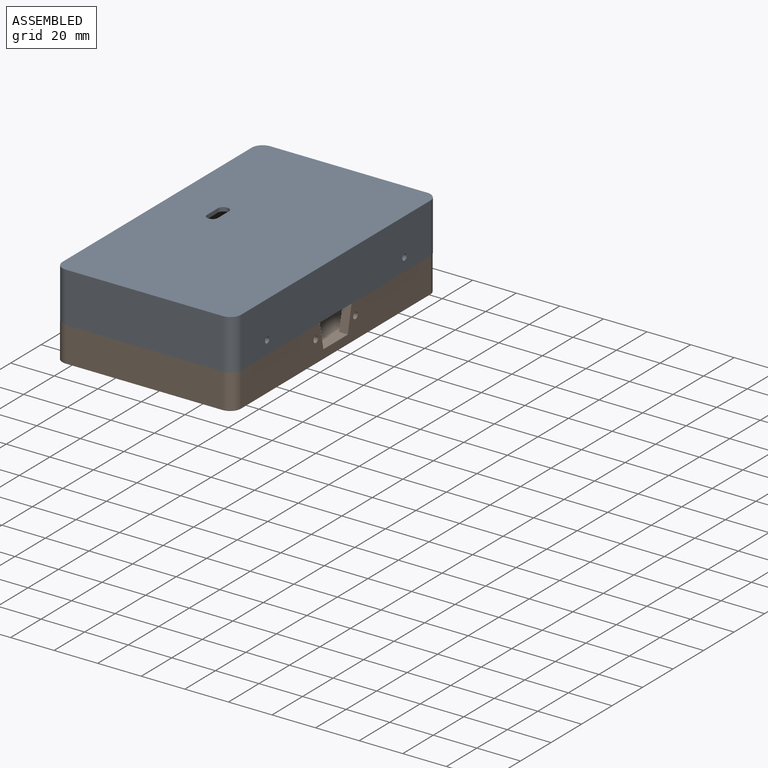
[diagram: assembled view]
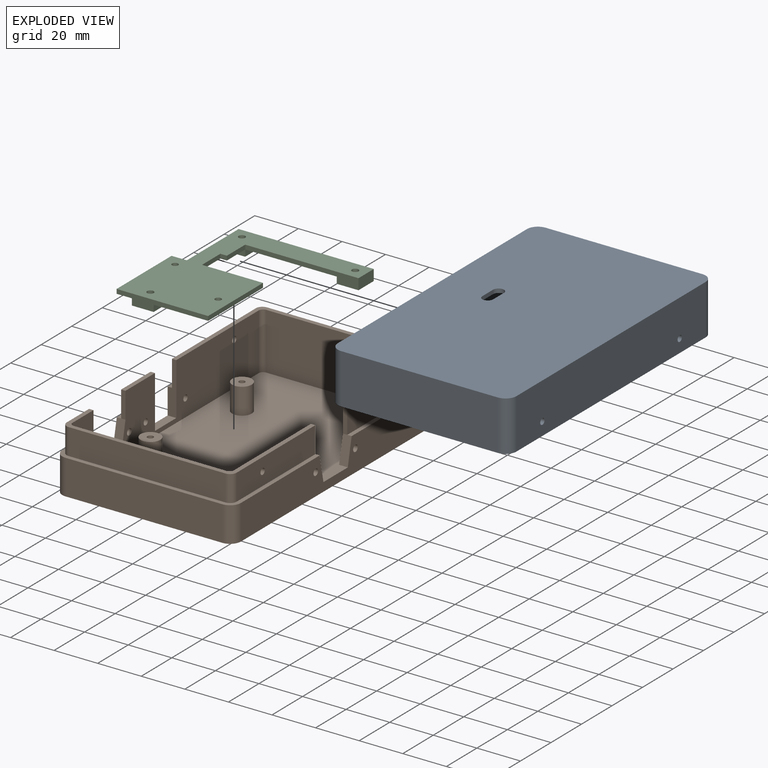
[diagram: exploded view]
GUIDED TOUR — MATED ASSEMBLY (Onshape document 04ff44c08c69bb49b1669c50, AutoMate assembly 04ff44c08c69bb49b1669c50_e179a15baec8fcd896b76df0_8e14007670037d41031667e9_default)

This assembly has 3 components, labeled P0..P2 below (a component is one placed occurrence of a part; the same part can appear more than once), held together by 2 mates. A mate is a constraint between two components; its type names the relative motion it leaves free:
  FASTENED — locks the two components together rigidly (no relative motion).
Axis/direction vectors are unit vectors and 'through' points are millimeter coordinates, both in the assembly's world frame.

MATES
  1. FASTENED "Fastened 2": P2 <-> P1, direction (0.000, 0.000, -1.000) through (92.98, 67.39, 0.68) mm
  2. FASTENED "Fastened 1": P0 <-> P1, direction (1.000, 0.000, 0.000) through (24.98, 82.39, 8.68) mm

ASSEMBLY ORDER
  1. P2 — the base component [order verified]
  2. P0 [order verified]
  3. P1 [order verified]
Order-tag legend:
  [order verified] — this step's position reverses a verified removal order: the component was checked to insert without passing through the ones already placed.

Of the 3 components, 3 carry the full construction recipe — the FeatureScript program that regenerates the part's solid from scratch; the rest are supplied as boundary geometry only.
Each toured component is shown spotlighted twice — in the assembled view, then in the exploded view, where a leader line traces a displaced component back to its assembled socket (saturated green if recipe-attached, orange if geometry-only; every other component desaturated gray) — followed by its recipe or geometry summary and the mates that hold it.
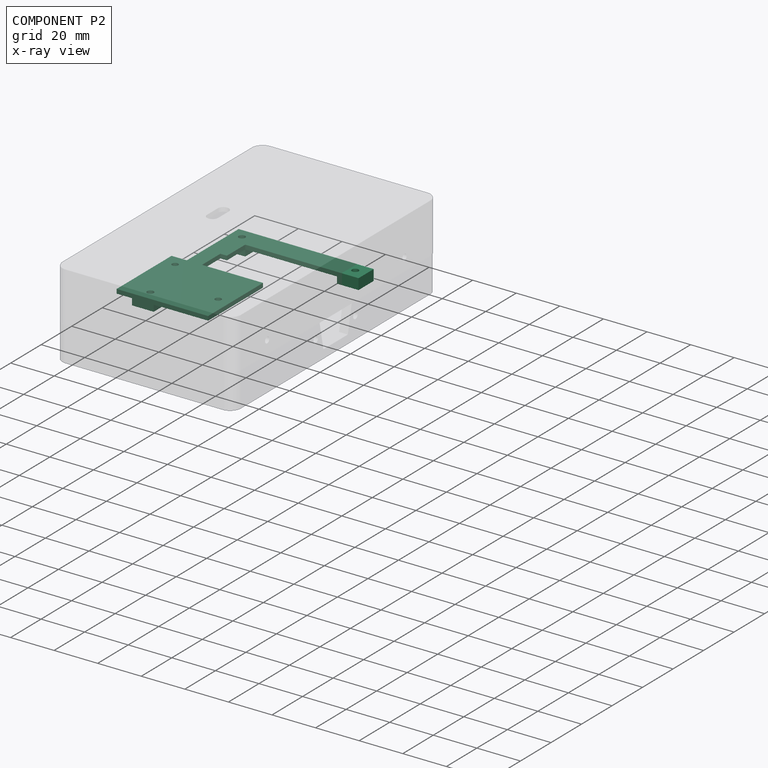
[diagram: component P2 — x-ray view]
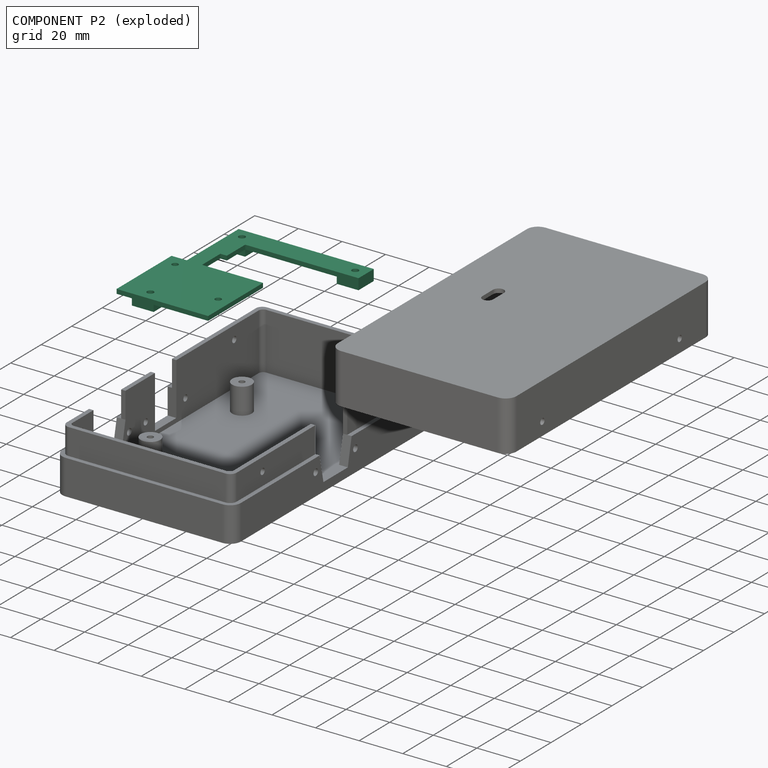
[diagram: component P2 — exploded]
COMPONENT P2 — recipe-attached (CADFS 00155675, mesh-verified: the recipe's output STEP matches this component's geometry to below the mesh-comparison resolution (tessellation chordal tolerance ~0.148 mm)).
Held by: FASTENED mate "Fastened 2" to P1.
Construction recipe (FeatureScript — the CAD program that rebuilds this solid; sketch coordinates are in the units given by the * unit suffixes, e.g. mm):

FeatureScript 1511;
import(path : "onshape/std/geometry.fs", version : "1511.0");
import(path : "onshape/std/common.fs", version : "1511.0");
const mm = millimeter;
const VERTEX = EntityType.VERTEX;
const EDGE = EntityType.EDGE;
const FACE = EntityType.FACE;
const BODY = EntityType.BODY;
function v(x, y){return vector(x, y);}
function OD(order){return orderDisambiguation(order);}
function OSD(set){return originalSetDisambiguation(set);}
function TD(topology){return topologyDisambiguation(topology);}
function TDD(query){return trueDependencyDisambiguation(query);}
function sQuery(a, b, c) {return sketchEntityQuery(a, b, c);}

annotation { "Feature Type Name" : "Feature", "Feature Type Description" : "" }
export const myFeature = defineFeature(function(context is Context, id is Id, definition is map)
    precondition{}
    {
        {
            var Q0;
            Q0=qCreatedBy(makeId("Top.planeOp"),FACE);
            var sketch = newSketch(context, id + "F0", { "sketchPlane" : qUnion([Q0])});
            skLineSegment(sketch, "E0", {"start": v(-62.44, 59.41) * mm, "end": v(-52.44, 59.41) * mm});
            skLineSegment(sketch, "E1", {"start": v(-52.44, 59.41) * mm, "end": v(-52.44, 7.41) * mm});
            skLineSegment(sketch, "E2", {"start": v(-52.44, 7.41) * mm, "end": v(-40.44, 7.41) * mm});
            skLineSegment(sketch, "E3", {"start": v(-40.44, 7.41) * mm, "end": v(-40.44, 4.41) * mm});
            skLineSegment(sketch, "E4", {"start": v(-40.44, 4.41) * mm, "end": v(-28.44, 4.41) * mm});
            skLineSegment(sketch, "E5", {"start": v(-28.44, 4.41) * mm, "end": v(-28.44, 32.41) * mm});
            skLineSegment(sketch, "E6", {"start": v(-28.44, 32.41) * mm, "end": v(7.56, 32.41) * mm});
            skLineSegment(sketch, "E7", {"start": v(7.56, 32.41) * mm, "end": v(7.56, -9.59) * mm});
            skLineSegment(sketch, "E8", {"start": v(7.56, -9.59) * mm, "end": v(-28.44, -9.59) * mm});
            skLineSegment(sketch, "E9", {"start": v(-28.44, -9.59) * mm, "end": v(-28.44, -2.59) * mm});
            skLineSegment(sketch, "E10", {"start": v(-28.44, -2.59) * mm, "end": v(-62.44, -2.59) * mm});
            skLineSegment(sketch, "E11", {"start": v(-62.44, -2.59) * mm, "end": v(-62.44, 59.41) * mm});
            skSolve(sketch);
        }
        {
            var Q0;
            Q0 = qSketchRegion(id + "F0", true);
            extrude(context, id + "F1", {"entities" : qUnion([Q0]), "depth" : 2 * mm});
        }
        {
            var Q0;
            Q0=makeQuery(id+"F1.opExtrude","CAP_FACE",FACE,{"disambiguationData":[OSD([sQuery(id+"F0.wireOp",EDGE,"E0"),sQuery(id+"F0.wireOp",EDGE,"E1"),sQuery(id+"F0.wireOp",EDGE,"E2"),sQuery(id+"F0.wireOp",EDGE,"E3"),sQuery(id+"F0.wireOp",EDGE,"E4"),sQuery(id+"F0.wireOp",EDGE,"E5"),sQuery(id+"F0.wireOp",EDGE,"E6"),sQuery(id+"F0.wireOp",EDGE,"E7"),sQuery(id+"F0.wireOp",EDGE,"E8"),sQuery(id+"F0.wireOp",EDGE,"E9"),sQuery(id+"F0.wireOp",EDGE,"E10"),sQuery(id+"F0.wireOp",EDGE,"E11")])],"isStart":true});
            var sketch = newSketch(context, id + "F2", { "sketchPlane" : qUnion([Q0])});
            skLineSegment(sketch, "E12.bottom", {"start": v(-52.44, -59.41) * mm, "end": v(-62.44, -59.41) * mm});
            skLineSegment(sketch, "E12.top", {"start": v(-52.44, -49.41) * mm, "end": v(-62.44, -49.41) * mm});
            skLineSegment(sketch, "E12.left", {"start": v(-52.44, -59.41) * mm, "end": v(-52.44, -49.41) * mm});
            skLineSegment(sketch, "E12.right", {"start": v(-62.44, -59.41) * mm, "end": v(-62.44, -49.41) * mm});
            skPoint(sketch, "E12.middle", {"position": v(-57.44, -54.41) * mm});
            skLineSegment(sketch, "E13.bottom", {"start": v(-52.44, -7.41) * mm, "end": v(-62.44, -7.41) * mm});
            skLineSegment(sketch, "E13.top", {"start": v(-52.44, 2.59) * mm, "end": v(-62.44, 2.59) * mm});
            skLineSegment(sketch, "E13.left", {"start": v(-52.44, -7.41) * mm, "end": v(-52.44, 2.59) * mm});
            skLineSegment(sketch, "E13.right", {"start": v(-62.44, -7.41) * mm, "end": v(-62.44, 2.59) * mm});
            skPoint(sketch, "E13.middle", {"position": v(-57.44, -2.41) * mm});
            skLineSegment(sketch, "E14.bottom", {"start": v(7.56, -7.41) * mm, "end": v(-2.44, -7.41) * mm});
            skLineSegment(sketch, "E14.top", {"start": v(7.56, 2.59) * mm, "end": v(-2.44, 2.59) * mm});
            skLineSegment(sketch, "E14.left", {"start": v(7.56, -7.41) * mm, "end": v(7.56, 2.59) * mm});
            skLineSegment(sketch, "E14.right", {"start": v(-2.44, -7.41) * mm, "end": v(-2.44, 2.59) * mm});
            skPoint(sketch, "E14.middle", {"position": v(2.56, -2.41) * mm});
            skSolve(sketch);
        }
        {
            var Q0;
            Q0 = qSketchRegion(id + "F2", true);
            extrude(context, id + "F3", {"entities" : qUnion([Q0]), "operationType" : NewBodyOperationType.ADD, "depth" : 3 * mm});
        }
        {
            var Q0;
            Q0=makeQuery(id+"F1.opExtrude","CAP_FACE",FACE,{"disambiguationData":[OSD([sQuery(id+"F0.wireOp",EDGE,"E0"),sQuery(id+"F0.wireOp",EDGE,"E1"),sQuery(id+"F0.wireOp",EDGE,"E2"),sQuery(id+"F0.wireOp",EDGE,"E3"),sQuery(id+"F0.wireOp",EDGE,"E4"),sQuery(id+"F0.wireOp",EDGE,"E5"),sQuery(id+"F0.wireOp",EDGE,"E6"),sQuery(id+"F0.wireOp",EDGE,"E7"),sQuery(id+"F0.wireOp",EDGE,"E8"),sQuery(id+"F0.wireOp",EDGE,"E9"),sQuery(id+"F0.wireOp",EDGE,"E10"),sQuery(id+"F0.wireOp",EDGE,"E11")])],"isStart":false});
            var sketch = newSketch(context, id + "F4", { "sketchPlane" : qUnion([Q0])});
            skCircle(sketch, "E15", {"center": v(-57.44, 54.41) * mm, "radius": 1.5 * mm});
            skCircle(sketch, "E16", {"center": v(-57.44, 2.41) * mm, "radius": 1.5 * mm});
            skCircle(sketch, "E17", {"center": v(2.56, 2.41) * mm, "radius": 1.5 * mm});
            skCircle(sketch, "E18", {"center": v(-6.94, 26.91) * mm, "radius": 1.4 * mm});
            skCircle(sketch, "E19", {"center": v(-22.94, -4.09) * mm, "radius": 1.4 * mm});
            skSolve(sketch);
        }
        {
            var Q0;
            Q0 = qSketchRegion(id + "F4", true);
            extrude(context, id + "F5", {"entities" : qUnion([Q0]), "operationType" : NewBodyOperationType.REMOVE, "oppositeDirection" : true, "depth" : 5 * mm});
        }
    });
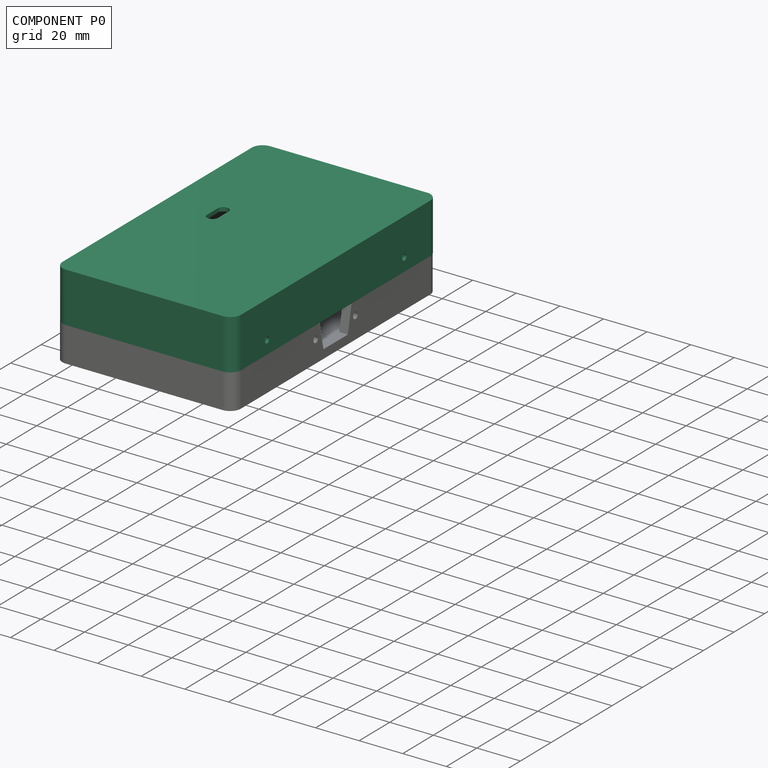
[diagram: component P0 — assembled]
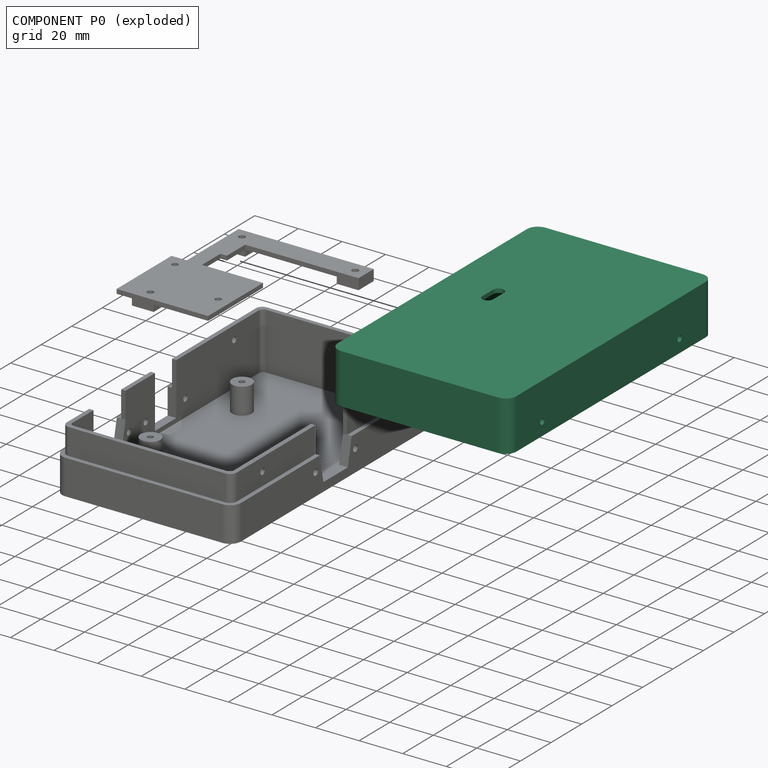
[diagram: component P0 — exploded]
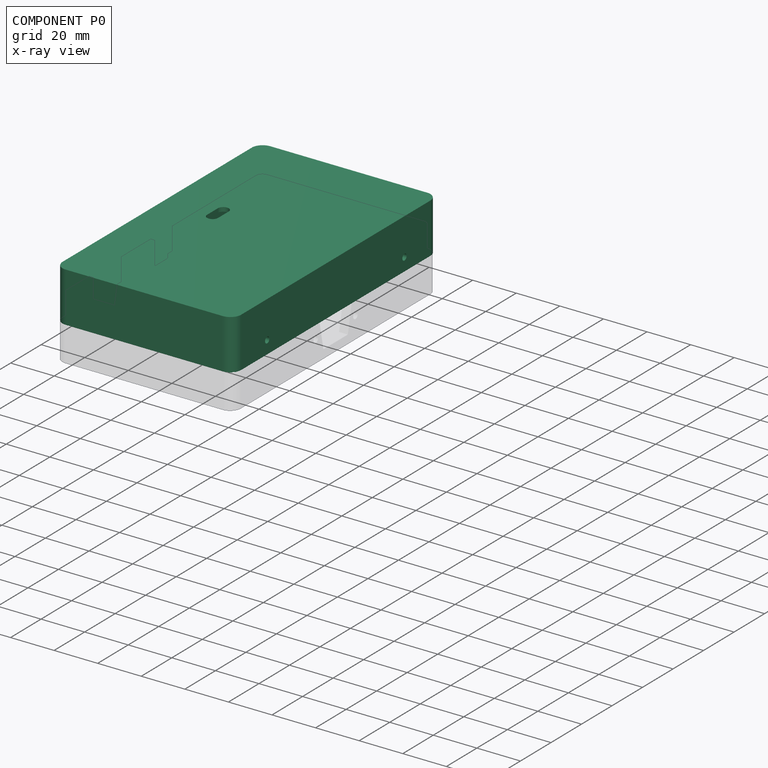
[diagram: component P0 — x-ray view]
COMPONENT P0 — recipe-attached (CADFS 00155676, mesh-verified: the recipe's output STEP matches this component's geometry to below the mesh-comparison resolution (tessellation chordal tolerance ~0.238 mm)).
Held by: FASTENED mate "Fastened 1" to P1.
Construction recipe (FeatureScript — the CAD program that rebuilds this solid; sketch coordinates are in the units given by the * unit suffixes, e.g. mm):

FeatureScript 1511;
import(path : "onshape/std/geometry.fs", version : "1511.0");
import(path : "onshape/std/common.fs", version : "1511.0");
const mm = millimeter;
const VERTEX = EntityType.VERTEX;
const EDGE = EntityType.EDGE;
const FACE = EntityType.FACE;
const BODY = EntityType.BODY;
function v(x, y){return vector(x, y);}
function OD(order){return orderDisambiguation(order);}
function OSD(set){return originalSetDisambiguation(set);}
function TD(topology){return topologyDisambiguation(topology);}
function TDD(query){return trueDependencyDisambiguation(query);}
function sQuery(a, b, c) {return sketchEntityQuery(a, b, c);}

annotation { "Feature Type Name" : "Feature", "Feature Type Description" : "" }
export const myFeature = defineFeature(function(context is Context, id is Id, definition is map)
    precondition{}
    {
        {
            var Q0;
            Q0=qCreatedBy(makeId("Top.planeOp"),FACE);
            var sketch = newSketch(context, id + "F0", { "sketchPlane" : qUnion([Q0])});
            skLineSegment(sketch, "E0.bottom", {"start": v(36, -67) * mm, "end": v(-36, -67) * mm});
            skLineSegment(sketch, "E0.top", {"start": v(36, 67) * mm, "end": v(-36, 67) * mm});
            skLineSegment(sketch, "E0.left", {"start": v(41, -62) * mm, "end": v(41, 62) * mm});
            skLineSegment(sketch, "E0.right", {"start": v(-41, -62) * mm, "end": v(-41, 62) * mm});
            skPoint(sketch, "E0.middle", {"position": v(0, 0) * mm});
            skPoint(sketch, "E1.visualSharp", {"position": v(-41, 67) * mm});
            skArc(sketch, "E1.filletArc", {"start": v(-36, 67) * mm, "mid": v(-39.54, 65.54) * mm, "end": v(-41, 62) * mm});
            skPoint(sketch, "E2.visualSharp", {"position": v(41, 67) * mm});
            skArc(sketch, "E2.filletArc", {"start": v(41, 62) * mm, "mid": v(39.54, 65.54) * mm, "end": v(36, 67) * mm});
            skPoint(sketch, "E3.visualSharp", {"position": v(41, -67) * mm});
            skArc(sketch, "E3.filletArc", {"start": v(36, -67) * mm, "mid": v(39.54, -65.54) * mm, "end": v(41, -62) * mm});
            skPoint(sketch, "E4.visualSharp", {"position": v(-41, -67) * mm});
            skArc(sketch, "E4.filletArc", {"start": v(-41, -62) * mm, "mid": v(-39.54, -65.54) * mm, "end": v(-36, -67) * mm});
            skSolve(sketch);
        }
        {
            var Q0;
            Q0=qSketchRegion(id+"F0",true);
            extrude(context, id + "F1", {"entities" : qUnion([Q0]), "depth" : 23 * mm});
        }
        {
            var Q0;
            Q0=makeQuery(id+"F1.opExtrude","CAP_FACE",FACE,{"disambiguationData":[OSD([sQuery(id+"F0.wireOp",EDGE,"E0.bottom"),sQuery(id+"F0.wireOp",EDGE,"E0.top"),sQuery(id+"F0.wireOp",EDGE,"E0.left"),sQuery(id+"F0.wireOp",EDGE,"E0.right"),sQuery(id+"F0.wireOp",EDGE,"E1.filletArc"),sQuery(id+"F0.wireOp",EDGE,"E2.filletArc"),sQuery(id+"F0.wireOp",EDGE,"E3.filletArc"),sQuery(id+"F0.wireOp",EDGE,"E4.filletArc")])],"isStart":false});
            shell(context, id + "F2", {"entities" : qUnion([Q0]), "thickness" : 1.9 * mm});
        }
        {
            var Q0;
            Q0=makeQuery(id+"F2.opShell","OFFSET_FACE",FACE,{"disambiguationData":[OSD([sQuery(id+"F0.wireOp",EDGE,"E0.bottom"),sQuery(id+"F0.wireOp",EDGE,"E0.top"),sQuery(id+"F0.wireOp",EDGE,"E0.left"),sQuery(id+"F0.wireOp",EDGE,"E0.right"),sQuery(id+"F0.wireOp",EDGE,"E1.filletArc"),sQuery(id+"F0.wireOp",EDGE,"E2.filletArc"),sQuery(id+"F0.wireOp",EDGE,"E3.filletArc"),sQuery(id+"F0.wireOp",EDGE,"E4.filletArc")])]});
            var sketch = newSketch(context, id + "F3", { "sketchPlane" : qUnion([Q0])});
            skLineSegment(sketch, "E5.left", {"start": v(20.5, 3.5) * mm, "end": v(20.5, 10.5) * mm});
            skLineSegment(sketch, "E5.right", {"start": v(15.5, 3.5) * mm, "end": v(15.5, 10.5) * mm});
            skPoint(sketch, "E5.middle", {"position": v(18, 7) * mm});
            skArc(sketch, "E6", {"start": v(15.5, 10.5) * mm, "mid": v(18, 13) * mm, "end": v(20.5, 10.5) * mm});
            skArc(sketch, "E7", {"start": v(20.5, 3.5) * mm, "mid": v(18, 1) * mm, "end": v(15.5, 3.5) * mm});
            skPoint(sketch, "E8.middle", {"position": v(0, 0) * mm});
            skSolve(sketch);
        }
        {
            var Q0;
            Q0=makeQuery(id+"F3.imprint","IMPRINT",FACE,{"disambiguationData":[TD([[makeQuery(id+"F3.imprint","IMPRINT",EDGE,{"derivedFrom":sQuery(id+"F3.wireOp",EDGE,"E5.left")}),1.0]])]});
            extrude(context, id + "F4", {"entities" : qUnion([Q0]), "operationType" : NewBodyOperationType.REMOVE, "oppositeDirection" : true, "depth" : 2 * mm});
        }
        {
            var Q0;
            Q0=makeQuery(id+"F1.opExtrude","SWEPT_FACE",FACE,{"disambiguationData":[OSD([sQuery(id+"F0.wireOp",EDGE,"E0.right")])]});
            var sketch = newSketch(context, id + "F5", { "sketchPlane" : qUnion([Q0])});
            skCircle(sketch, "E9", {"center": v(-45, 17) * mm, "radius": 1.4 * mm});
            skCircle(sketch, "E10", {"center": v(45, 17) * mm, "radius": 1.4 * mm});
            skSolve(sketch);
        }
        {
            var Q0;
            Q0 = qSketchRegion(id + "F5", true);
            extrude(context, id + "F6", {"entities" : qUnion([Q0]), "operationType" : NewBodyOperationType.REMOVE, "oppositeDirection" : true, "depth" : 2 * mm});
        }
        {
            var Q0;
            Q0=makeQuery(id+"F1.opExtrude","SWEPT_FACE",FACE,{"disambiguationData":[OSD([sQuery(id+"F0.wireOp",EDGE,"E0.left")])]});
            var sketch = newSketch(context, id + "F7", { "sketchPlane" : qUnion([Q0])});
            skCircle(sketch, "E11", {"center": v(-55, 17) * mm, "radius": 1.4 * mm});
            skCircle(sketch, "E12", {"center": v(45, 17) * mm, "radius": 1.4 * mm});
            skSolve(sketch);
        }
        {
            var Q0;
            Q0 = qSketchRegion(id + "F7", true);
            extrude(context, id + "F8", {"entities" : qUnion([Q0]), "operationType" : NewBodyOperationType.REMOVE, "oppositeDirection" : true, "depth" : 2 * mm});
        }
    });
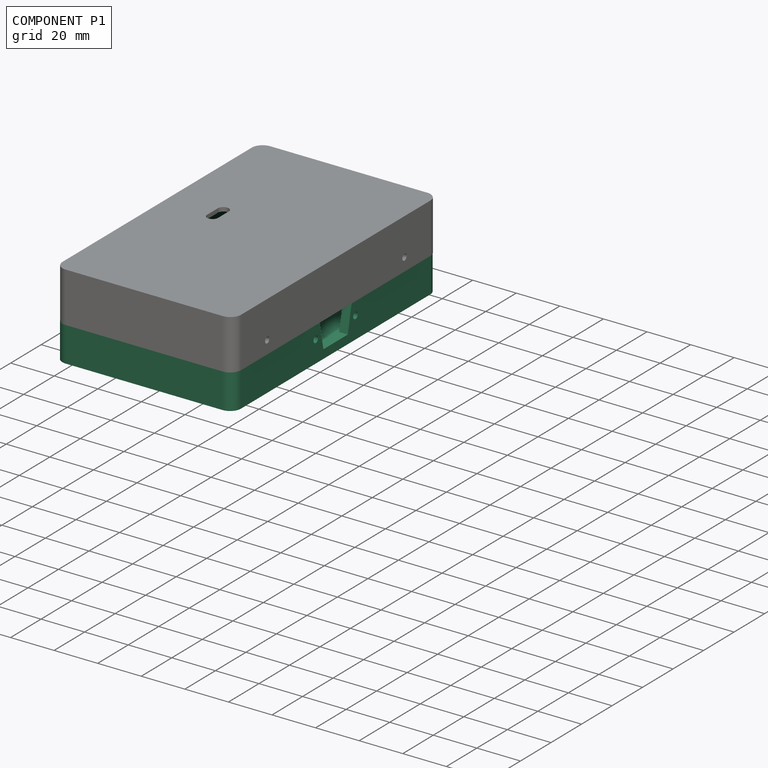
[diagram: component P1 — assembled]
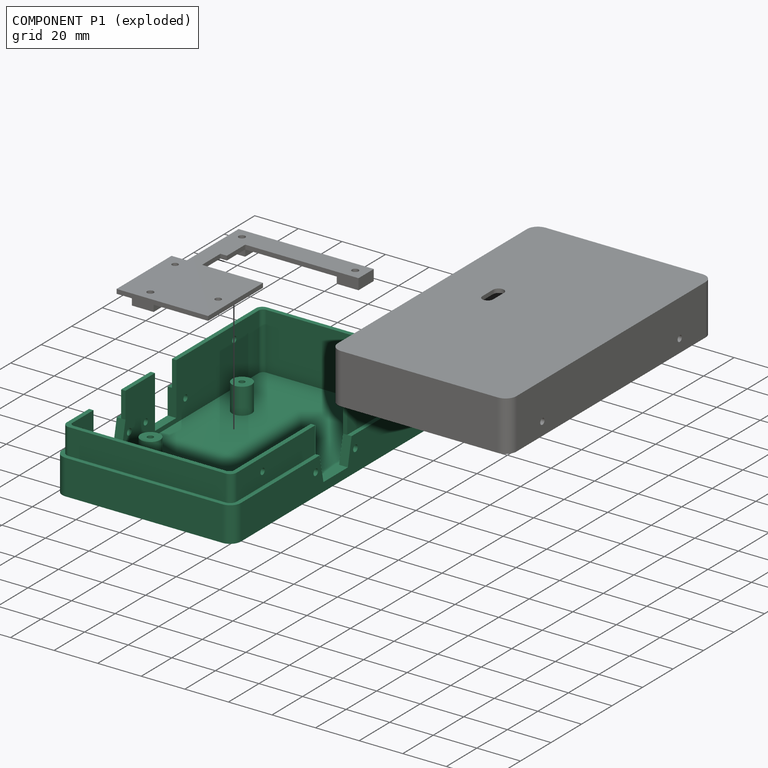
[diagram: component P1 — exploded]
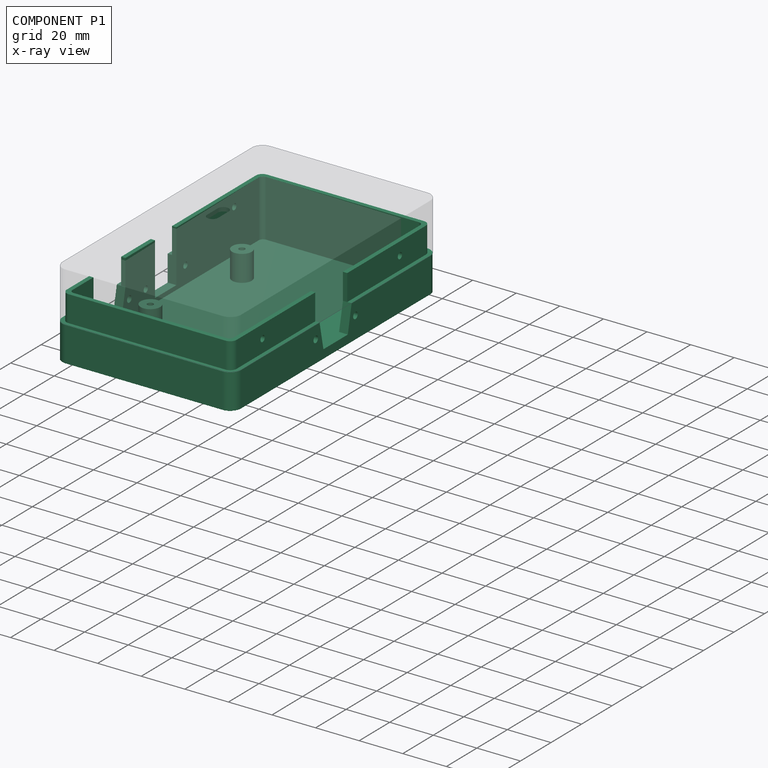
[diagram: component P1 — x-ray view]
COMPONENT P1 — recipe-attached (CADFS 00155674, mesh-verified: the recipe's output STEP matches this component's geometry to below the mesh-comparison resolution (tessellation chordal tolerance ~0.239 mm)).
Held by: FASTENED mate "Fastened 2" to P2; FASTENED mate "Fastened 1" to P0.
Construction recipe (FeatureScript — the CAD program that rebuilds this solid; sketch coordinates are in the units given by the * unit suffixes, e.g. mm):

FeatureScript 1511;
import(path : "onshape/std/geometry.fs", version : "1511.0");
import(path : "onshape/std/common.fs", version : "1511.0");
const mm = millimeter;
const VERTEX = EntityType.VERTEX;
const EDGE = EntityType.EDGE;
const FACE = EntityType.FACE;
const BODY = EntityType.BODY;
function v(x, y){return vector(x, y);}
function OD(order){return orderDisambiguation(order);}
function OSD(set){return originalSetDisambiguation(set);}
function TD(topology){return topologyDisambiguation(topology);}
function TDD(query){return trueDependencyDisambiguation(query);}
function sQuery(a, b, c) {return sketchEntityQuery(a, b, c);}

annotation { "Feature Type Name" : "Feature", "Feature Type Description" : "" }
export const myFeature = defineFeature(function(context is Context, id is Id, definition is map)
    precondition{}
    {
        {
            var Q0;
            Q0=qCreatedBy(makeId("Top.planeOp"),FACE);
            var sketch = newSketch(context, id + "F0", { "sketchPlane" : qUnion([Q0])});
            skLineSegment(sketch, "E0.bottom", {"start": v(36, -67) * mm, "end": v(-36, -67) * mm});
            skLineSegment(sketch, "E0.top", {"start": v(36, 67) * mm, "end": v(-36, 67) * mm});
            skLineSegment(sketch, "E0.left", {"start": v(41, -62) * mm, "end": v(41, 62) * mm});
            skLineSegment(sketch, "E0.right", {"start": v(-41, -62) * mm, "end": v(-41, 62) * mm});
            skPoint(sketch, "E0.middle", {"position": v(0, 0) * mm});
            skPoint(sketch, "E1.visualSharp", {"position": v(-41, 67) * mm});
            skArc(sketch, "E1.filletArc", {"start": v(-36, 67) * mm, "mid": v(-39.54, 65.54) * mm, "end": v(-41, 62) * mm});
            skPoint(sketch, "E2.visualSharp", {"position": v(41, 67) * mm});
            skArc(sketch, "E2.filletArc", {"start": v(41, 62) * mm, "mid": v(39.54, 65.54) * mm, "end": v(36, 67) * mm});
            skPoint(sketch, "E3.visualSharp", {"position": v(41, -67) * mm});
            skArc(sketch, "E3.filletArc", {"start": v(36, -67) * mm, "mid": v(39.54, -65.54) * mm, "end": v(41, -62) * mm});
            skPoint(sketch, "E4.visualSharp", {"position": v(-41, -67) * mm});
            skArc(sketch, "E4.filletArc", {"start": v(-41, -62) * mm, "mid": v(-39.54, -65.54) * mm, "end": v(-36, -67) * mm});
            skSolve(sketch);
        }
        {
            var Q0;
            Q0=qSketchRegion(id+"F0",true);
            extrude(context, id + "F1", {"entities" : qUnion([Q0]), "depth" : 16 * mm});
        }
        {
            var Q0;
            Q0=makeQuery(id+"F1.opExtrude","CAP_FACE",FACE,{"disambiguationData":[OSD([sQuery(id+"F0.wireOp",EDGE,"E0.bottom"),sQuery(id+"F0.wireOp",EDGE,"E0.top"),sQuery(id+"F0.wireOp",EDGE,"E0.left"),sQuery(id+"F0.wireOp",EDGE,"E0.right"),sQuery(id+"F0.wireOp",EDGE,"E1.filletArc"),sQuery(id+"F0.wireOp",EDGE,"E2.filletArc"),sQuery(id+"F0.wireOp",EDGE,"E3.filletArc"),sQuery(id+"F0.wireOp",EDGE,"E4.filletArc")])],"isStart":false});
            shell(context, id + "F2", {"entities" : qUnion([Q0]), "thickness" : 2 * mm});
        }
        {
            var Q0;
            Q0=makeQuery(id+"F2.opShell","OFFSET_FACE",FACE,{"disambiguationData":[OSD([sQuery(id+"F0.wireOp",EDGE,"E0.bottom"),sQuery(id+"F0.wireOp",EDGE,"E0.top"),sQuery(id+"F0.wireOp",EDGE,"E0.left"),sQuery(id+"F0.wireOp",EDGE,"E0.right"),sQuery(id+"F0.wireOp",EDGE,"E1.filletArc"),sQuery(id+"F0.wireOp",EDGE,"E2.filletArc"),sQuery(id+"F0.wireOp",EDGE,"E3.filletArc"),sQuery(id+"F0.wireOp",EDGE,"E4.filletArc")])]});
            var sketch = newSketch(context, id + "F3", { "sketchPlane" : qUnion([Q0])});
            skCircle(sketch, "E5", {"center": v(-23, 30) * mm, "radius": 4.5 * mm});
            skCircle(sketch, "E6", {"center": v(29, 30) * mm, "radius": 4.5 * mm});
            skCircle(sketch, "E7", {"center": v(-23, -30) * mm, "radius": 4.5 * mm});
            skCircle(sketch, "E8", {"center": v(29, -30) * mm, "radius": 4.5 * mm});
            skLineSegment(sketch, "E9.bottom", {"start": v(36, -65) * mm, "end": v(-36, -65) * mm});
            skLineSegment(sketch, "E9.left", {"start": v(39, -62) * mm, "end": v(39, 62) * mm});
            skLineSegment(sketch, "E9.right", {"start": v(-39, -62) * mm, "end": v(-39, 62) * mm});
            skPoint(sketch, "E9.middle", {"position": v(0, 0) * mm});
            skLineSegment(sketch, "E10.bottom", {"start": v(35, -63) * mm, "end": v(-35, -63) * mm});
            skLineSegment(sketch, "E10.left", {"start": v(37, -61) * mm, "end": v(37, 61) * mm});
            skLineSegment(sketch, "E10.right", {"start": v(-37, -61) * mm, "end": v(-37, 61) * mm});
            skPoint(sketch, "E11.visualSharp", {"position": v(-39, -65) * mm});
            skArc(sketch, "E11.filletArc", {"start": v(-39, -62) * mm, "mid": v(-38.12, -64.12) * mm, "end": v(-36, -65) * mm});
            skPoint(sketch, "E12.visualSharp", {"position": v(39, -65) * mm});
            skArc(sketch, "E12.filletArc", {"start": v(36, -65) * mm, "mid": v(38.12, -64.12) * mm, "end": v(39, -62) * mm});
            skPoint(sketch, "E13.visualSharp", {"position": v(-39, 65) * mm});
            skArc(sketch, "E13.filletArc", {"start": v(-36, 65) * mm, "mid": v(-38.12, 64.12) * mm, "end": v(-39, 62) * mm});
            skPoint(sketch, "E14.visualSharp", {"position": v(39, 65) * mm});
            skArc(sketch, "E14.filletArc", {"start": v(39, 62) * mm, "mid": v(38.12, 64.12) * mm, "end": v(36, 65) * mm});
            skPoint(sketch, "E15.visualSharp", {"position": v(-37, 63) * mm});
            skArc(sketch, "E15.filletArc", {"start": v(-35, 63) * mm, "mid": v(-36.41, 62.41) * mm, "end": v(-37, 61) * mm});
            skPoint(sketch, "E16.visualSharp", {"position": v(37, 63) * mm});
            skArc(sketch, "E16.filletArc", {"start": v(37, 61) * mm, "mid": v(36.41, 62.41) * mm, "end": v(35, 63) * mm});
            skPoint(sketch, "E17.visualSharp", {"position": v(-37, -63) * mm});
            skArc(sketch, "E17.filletArc", {"start": v(-37, -61) * mm, "mid": v(-36.41, -62.41) * mm, "end": v(-35, -63) * mm});
            skPoint(sketch, "E18.visualSharp", {"position": v(37, -63) * mm});
            skArc(sketch, "E18.filletArc", {"start": v(35, -63) * mm, "mid": v(36.41, -62.41) * mm, "end": v(37, -61) * mm});
            skLineSegment(sketch, "E19.trimOffspring", {"start": v(36, 65) * mm, "end": v(-36, 65) * mm});
            skLineSegment(sketch, "E20.trimOffspring", {"start": v(35, 63) * mm, "end": v(-35, 63) * mm});
            skSolve(sketch);
        }
        {
            var Q0;
            Q0=makeQuery(id+"F3.imprint","IMPRINT",FACE,{"disambiguationData":[TD([[makeQuery(id+"F3.imprint","IMPRINT",EDGE,{"derivedFrom":sQuery(id+"F3.wireOp",EDGE,"E5")}),1.0]])]});
            var Q1;
            Q1=makeQuery(id+"F3.imprint","IMPRINT",FACE,{"disambiguationData":[TD([[makeQuery(id+"F3.imprint","IMPRINT",EDGE,{"derivedFrom":sQuery(id+"F3.wireOp",EDGE,"E7")}),1.0]])]});
            var Q2;
            Q2=makeQuery(id+"F3.imprint","IMPRINT",FACE,{"disambiguationData":[TD([[makeQuery(id+"F3.imprint","IMPRINT",EDGE,{"derivedFrom":sQuery(id+"F3.wireOp",EDGE,"E8")}),1.0]])]});
            var Q3;
            Q3=makeQuery(id+"F3.imprint","IMPRINT",FACE,{"disambiguationData":[TD([[makeQuery(id+"F3.imprint","IMPRINT",EDGE,{"derivedFrom":sQuery(id+"F3.wireOp",EDGE,"E6")}),1.0]])]});
            extrude(context, id + "F4", {"entities" : qUnion([Q0, Q1, Q2, Q3]), "operationType" : NewBodyOperationType.ADD, "depth" : 12 * mm});
        }
        {
            var Q0;
            Q0=makeQuery(id+"F4.opExtrude","CAP_FACE",FACE,{"disambiguationData":[OSD([sQuery(id+"F3.wireOp",EDGE,"E5")])],"isStart":false});
            var Q1;
            Q1=makeQuery(id+"F4.opExtrude","CAP_FACE",FACE,{"disambiguationData":[OSD([sQuery(id+"F3.wireOp",EDGE,"E6")])],"isStart":false});
            cPlane(context, id + "F5", {"entities" : qUnion([Q0, Q1]), "cplaneType" : CPlaneType.MID_PLANE, "offset" : 25 * mm, "width" : 150 * mm, "height" : 150 * mm});
        }
        {
            var Q0;
            Q0=qCreatedBy(id+"F5.planeOp",FACE);
            var sketch = newSketch(context, id + "F6", { "sketchPlane" : qUnion([Q0])});
            skCircle(sketch, "E21", {"center": v(-23, 30) * mm, "radius": 1.35 * mm});
            skCircle(sketch, "E22", {"center": v(29, 30) * mm, "radius": 1.35 * mm});
            skCircle(sketch, "E23", {"center": v(-23, -30) * mm, "radius": 1.35 * mm});
            skCircle(sketch, "E24", {"center": v(29, -30) * mm, "radius": 1.35 * mm});
            skSolve(sketch);
        }
        {
            var Q0;
            Q0=qSketchRegion(id+"F6",true);
            extrude(context, id + "F7", {"entities" : qUnion([Q0]), "operationType" : NewBodyOperationType.REMOVE, "oppositeDirection" : true, "depth" : 8 * mm});
        }
        {
            var Q0;
            Q0=makeQuery(id+"F3.imprint","IMPRINT",FACE,{"disambiguationData":[TD([[makeQuery(id+"F3.imprint","IMPRINT",EDGE,{"derivedFrom":sQuery(id+"F3.wireOp",EDGE,"E9.bottom")}),-1.0]])]});
            var Q1;
            Q1=makeQuery(id+"F3.imprint","IMPRINT",FACE,{"disambiguationData":[TD([[makeQuery(id+"F3.imprint","IMPRINT",EDGE,{"derivedFrom":sQuery(id+"F3.wireOp",EDGE,"E9.right")}),-1.0]])]});
            extrude(context, id + "F8", {"entities" : qUnion([Q0, Q1]), "operationType" : NewBodyOperationType.ADD, "depth" : 26 * mm});
        }
        {
            var Q0;
            Q0=makeQuery(id+"F1.opExtrude","SWEPT_FACE",FACE,{"disambiguationData":[OSD([sQuery(id+"F0.wireOp",EDGE,"E0.right")])]});
            var sketch = newSketch(context, id + "F9", { "sketchPlane" : qUnion([Q0])});
            skCircle(sketch, "E25", {"center": v(-13, 10) * mm, "radius": 1.4 * mm});
            skCircle(sketch, "E26", {"center": v(13, 10) * mm, "radius": 1.4 * mm});
            skLineSegment(sketch, "E27.bottom", {"start": v(7, 4) * mm, "end": v(-7, 4) * mm});
            skLineSegment(sketch, "E27.top", {"start": v(7, 16) * mm, "end": v(-7, 16) * mm});
            skLineSegment(sketch, "E27.left", {"start": v(7, 4) * mm, "end": v(7, 16) * mm});
            skLineSegment(sketch, "E27.right", {"start": v(-7, 4) * mm, "end": v(-7, 16) * mm});
            skPoint(sketch, "E27.middle", {"position": v(0, 10) * mm});
            skCircle(sketch, "E28", {"center": v(23.83, 10) * mm, "radius": 1.5 * mm});
            skCircle(sketch, "E29", {"center": v(49.83, 10) * mm, "radius": 1.5 * mm});
            skLineSegment(sketch, "E30", {"start": v(26.33, 16) * mm, "end": v(47.33, 16) * mm});
            skLineSegment(sketch, "E31", {"start": v(47.33, 16) * mm, "end": v(44.83, 4) * mm});
            skLineSegment(sketch, "E32", {"start": v(44.83, 4) * mm, "end": v(28.83, 4) * mm});
            skLineSegment(sketch, "E33", {"start": v(28.83, 4) * mm, "end": v(26.33, 16) * mm});
            skLineSegment(sketch, "E34.bottom", {"start": v(-7, 16) * mm, "end": v(7, 16) * mm});
            skLineSegment(sketch, "E34.top", {"start": v(-7, 28) * mm, "end": v(7, 28) * mm});
            skLineSegment(sketch, "E34.left", {"start": v(-7, 16) * mm, "end": v(-7, 28) * mm});
            skLineSegment(sketch, "E34.right", {"start": v(7, 16) * mm, "end": v(7, 28) * mm});
            skLineSegment(sketch, "E35.top", {"start": v(26.33, 28) * mm, "end": v(47.33, 28) * mm});
            skLineSegment(sketch, "E35.left", {"start": v(26.33, 16) * mm, "end": v(26.33, 28) * mm});
            skLineSegment(sketch, "E35.right", {"start": v(47.33, 16) * mm, "end": v(47.33, 28) * mm});
            skCircle(sketch, "E36", {"center": v(-45, 22) * mm, "radius": 1.4 * mm});
            skCircle(sketch, "E37", {"center": v(55, 22) * mm, "radius": 1.4 * mm});
            skSolve(sketch);
        }
        {
            var Q0;
            Q0=makeQuery(id+"F1.opExtrude","SWEPT_FACE",FACE,{"disambiguationData":[OSD([sQuery(id+"F0.wireOp",EDGE,"E0.left")])]});
            var sketch = newSketch(context, id + "F10", { "sketchPlane" : qUnion([Q0])});
            skCircle(sketch, "E38", {"center": v(-13, 10) * mm, "radius": 1.5 * mm});
            skCircle(sketch, "E39", {"center": v(13, 10) * mm, "radius": 1.5 * mm});
            skLineSegment(sketch, "E40", {"start": v(-10.5, 16) * mm, "end": v(10.5, 16) * mm});
            skLineSegment(sketch, "E41", {"start": v(10.5, 16) * mm, "end": v(8, 4) * mm});
            skLineSegment(sketch, "E42", {"start": v(8, 4) * mm, "end": v(-8, 4) * mm});
            skLineSegment(sketch, "E43", {"start": v(-8, 4) * mm, "end": v(-10.5, 16) * mm});
            skLineSegment(sketch, "E44.top", {"start": v(-10.5, 28) * mm, "end": v(10.5, 28) * mm});
            skLineSegment(sketch, "E44.left", {"start": v(-10.5, 16) * mm, "end": v(-10.5, 28) * mm});
            skLineSegment(sketch, "E44.right", {"start": v(10.5, 16) * mm, "end": v(10.5, 28) * mm});
            skCircle(sketch, "E45", {"center": v(45, 22) * mm, "radius": 1.4 * mm});
            skCircle(sketch, "E46", {"center": v(-45, 22) * mm, "radius": 1.4 * mm});
            skSolve(sketch);
        }
        {
            var Q0;
            Q0=qSketchRegion(id+"F9",true);
            extrude(context, id + "F11", {"entities" : qUnion([Q0]), "operationType" : NewBodyOperationType.REMOVE, "oppositeDirection" : true, "depth" : 4 * mm});
        }
        {
            var Q0;
            Q0=qSketchRegion(id+"F10",true);
            extrude(context, id + "F12", {"entities" : qUnion([Q0]), "operationType" : NewBodyOperationType.REMOVE, "oppositeDirection" : true, "depth" : 4 * mm});
        }
    });
PROVENANCE & LICENSES
Assembly (occurrences, transforms, mates, per-part STEP geometry): AutoMate dataset, Zenodo record 7776208, CC0.
Construction recipes: CADFS (HuggingFace VladPyatov/CADFS, CC-BY-4.0, layered over the ABC dataset), FeatureScript reconstruction programs keyed by ABC model id.
Join: ABC meta listings map ABC model id -> Onshape documentId; within a shared document, parts are matched by geometric signature (bounding-box dims + volume at 0.1% relative tolerance, exact B-rep face/solid counts).
Verification: 3 of this assembly's 3 components carry a recipe attachment, and every attachment is mesh-verified: the CADFS STEP and the AutoMate member STEP were compared as meshes in their shared local frame (symmetric sampled-point-to-mesh distance); worst across the 3 attachments: below the mesh-comparison resolution (tessellation chordal tolerance ~0.239 mm) on a 160 mm part.
Renders: orthographic iso camera (az 35 / el 25); the floor grid conveys scale (grid pitch printed in each image; no ruler). In the exploded view each component is displaced by its stored offset vector: the offsets alone carry the explosion direction (mate normal/axis signs are not orientation cues and do not encode it), and separation distances are assigned per mate-chain, not proportionally to assembly-order depth.
